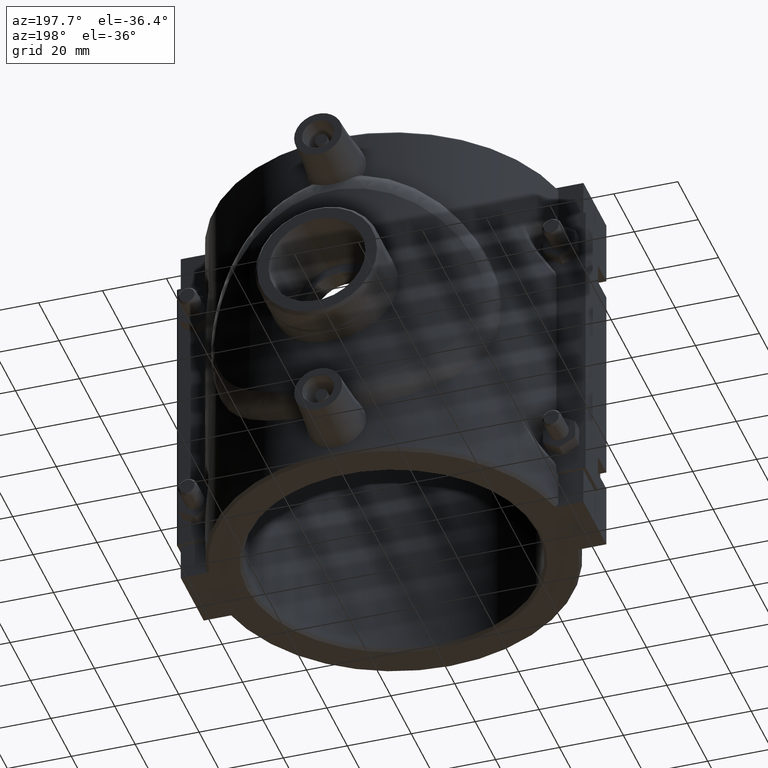
[diagram: clean part render]
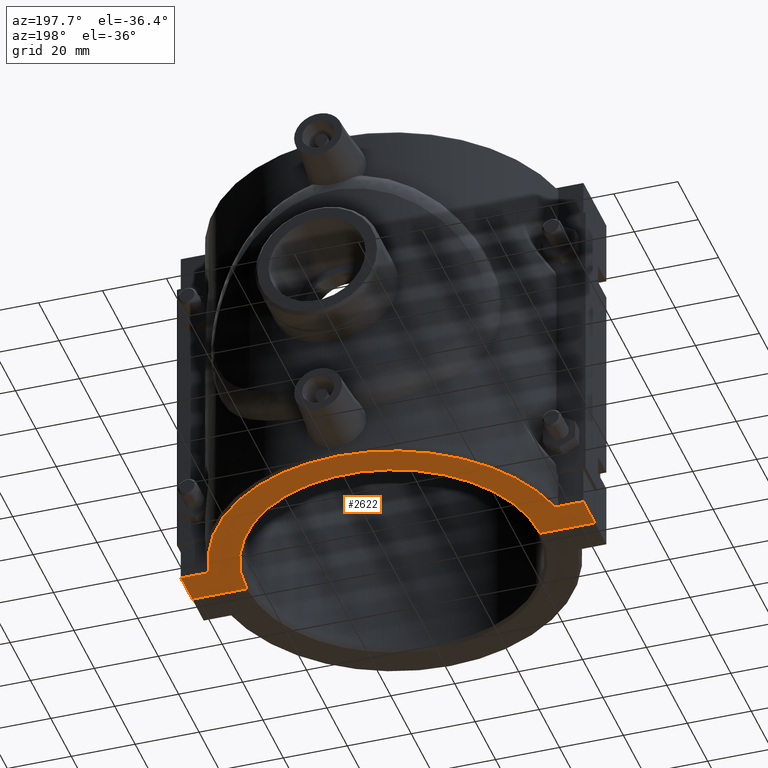
[diagram: same view with one face highlighted and labeled with its STEP entity id]
A machine part, auxiliary view. The second image highlights one B-rep face of the part: STEP entity #2622.
In plain terms, the highlighted planar face has unit normal (0, 0, 1).
Its self-contained STEP definition (entity closure, byte-faithful):
#323=FACE_OUTER_BOUND('',#511,.T.);
#511=EDGE_LOOP('',(#2229,#2230,#2231,#2232,#2233,#2234,#2235,#2236));
#610=LINE('',#3780,#809);
#713=LINE('',#5065,#912);
#737=LINE('',#5381,#936);
#742=LINE('',#5433,#941);
#743=LINE('',#5434,#942);
#744=LINE('',#5435,#943);
#809=VECTOR('',#2961,11.2);
#912=VECTOR('',#3276,17.1000272331236);
#936=VECTOR('',#3352,17.1000272331236);
#941=VECTOR('',#3391,8.80535081763147);
#942=VECTOR('',#3392,11.2);
#943=VECTOR('',#3393,8.80535081763146);
#1037=CIRCLE('',#2829,55.35);
#1038=CIRCLE('',#2831,45.9);
#1101=VERTEX_POINT('',#3777);
#1102=VERTEX_POINT('',#3779);
#1238=VERTEX_POINT('',#5064);
#1265=VERTEX_POINT('',#5376);
#1266=VERTEX_POINT('',#5380);
#1276=VERTEX_POINT('',#5419);
#1277=VERTEX_POINT('',#5423);
#1278=VERTEX_POINT('',#5432);
#1360=EDGE_CURVE('',#1102,#1101,#610,.T.);
#1552=EDGE_CURVE('',#1238,#1102,#713,.T.);
#1599=EDGE_CURVE('',#1266,#1265,#737,.T.);
#1616=EDGE_CURVE('',#1277,#1276,#1037,.T.);
#1617=EDGE_CURVE('',#1238,#1265,#1038,.T.);
#1619=EDGE_CURVE('',#1278,#1277,#742,.T.);
#1620=EDGE_CURVE('',#1278,#1266,#743,.T.);
#1621=EDGE_CURVE('',#1101,#1276,#744,.T.);
#2229=ORIENTED_EDGE('',*,*,#1619,.F.);
#2230=ORIENTED_EDGE('',*,*,#1620,.T.);
#2231=ORIENTED_EDGE('',*,*,#1599,.T.);
#2232=ORIENTED_EDGE('',*,*,#1617,.F.);
#2233=ORIENTED_EDGE('',*,*,#1552,.T.);
#2234=ORIENTED_EDGE('',*,*,#1360,.T.);
#2235=ORIENTED_EDGE('',*,*,#1621,.T.);
#2236=ORIENTED_EDGE('',*,*,#1616,.F.);
#2490=PLANE('',#2833);
#2622=ADVANCED_FACE('',(#323),#2490,.F.);
#2829=AXIS2_PLACEMENT_3D('',#5427,#3381,#3382);
#2831=AXIS2_PLACEMENT_3D('',#5429,#3385,#3386);
#2833=AXIS2_PLACEMENT_3D('',#5431,#3389,#3390);
#2961=DIRECTION('',(0.,1.,0.));
#3276=DIRECTION('',(-1.,2.75352932694731E-19,0.));
#3352=DIRECTION('',(-1.,2.75352932694731E-19,0.));
#3381=DIRECTION('center_axis',(0.,0.,1.));
#3382=DIRECTION('ref_axis',(1.,0.,0.));
#3385=DIRECTION('center_axis',(0.,0.,-1.));
#3386=DIRECTION('ref_axis',(-1.,0.,0.));
#3389=DIRECTION('center_axis',(0.,0.,1.));
#3390=DIRECTION('ref_axis',(1.,0.,0.));
#3391=DIRECTION('',(-1.,0.,0.));
#3392=DIRECTION('',(0.,-1.,0.));
#3393=DIRECTION('',(1.,0.,0.));
#3777=CARTESIAN_POINT('',(-63.,11.25,-59.));
#3779=CARTESIAN_POINT('',(-63.,0.05,-59.));
#3780=CARTESIAN_POINT('',(-63.,11.25,-59.));
#5064=CARTESIAN_POINT('',(-45.8999727668764,0.05,-59.));
#5065=CARTESIAN_POINT('',(1.6586374567119,0.05,-59.));
#5376=CARTESIAN_POINT('',(45.8999727668764,0.05,-59.));
#5380=CARTESIAN_POINT('',(63.,0.05,-59.));
#5381=CARTESIAN_POINT('',(1.6586374567119,0.05,-59.));
#5419=CARTESIAN_POINT('',(-54.1946491823686,11.25,-59.));
#5423=CARTESIAN_POINT('',(54.1946491823685,11.25,-59.));
#5427=CARTESIAN_POINT('Origin',(0.,0.,-59.));
#5429=CARTESIAN_POINT('Origin',(0.,0.,-59.));
#5431=CARTESIAN_POINT('Origin',(-59.6827250865762,0.,-59.));
#5432=CARTESIAN_POINT('',(63.,11.25,-59.));
#5433=CARTESIAN_POINT('',(1.6586374567119,11.25,-59.));
#5434=CARTESIAN_POINT('',(63.,-11.25,-59.));
#5435=CARTESIAN_POINT('',(-55.1135192126215,11.25,-59.));